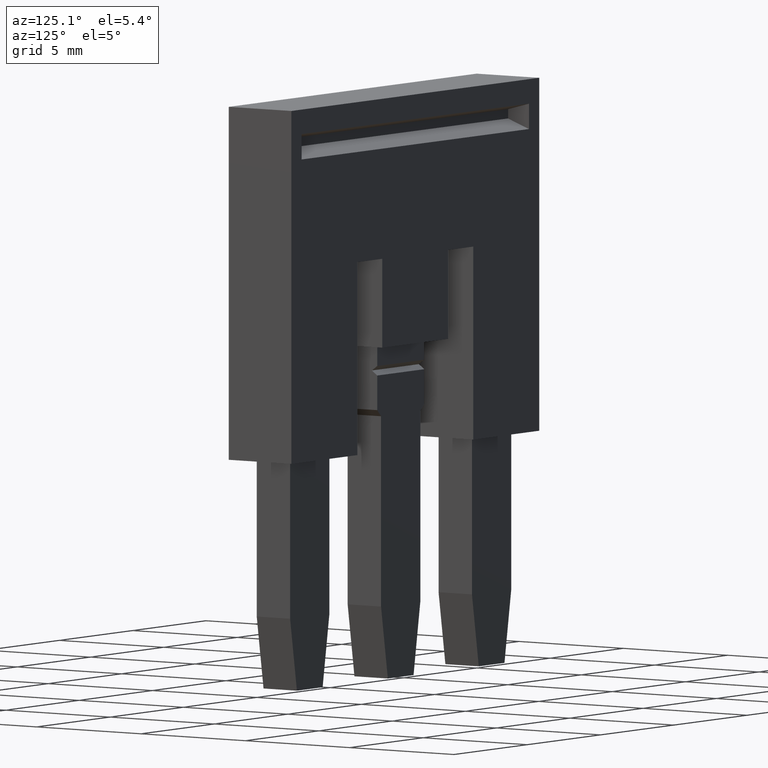
[diagram: clean part render]
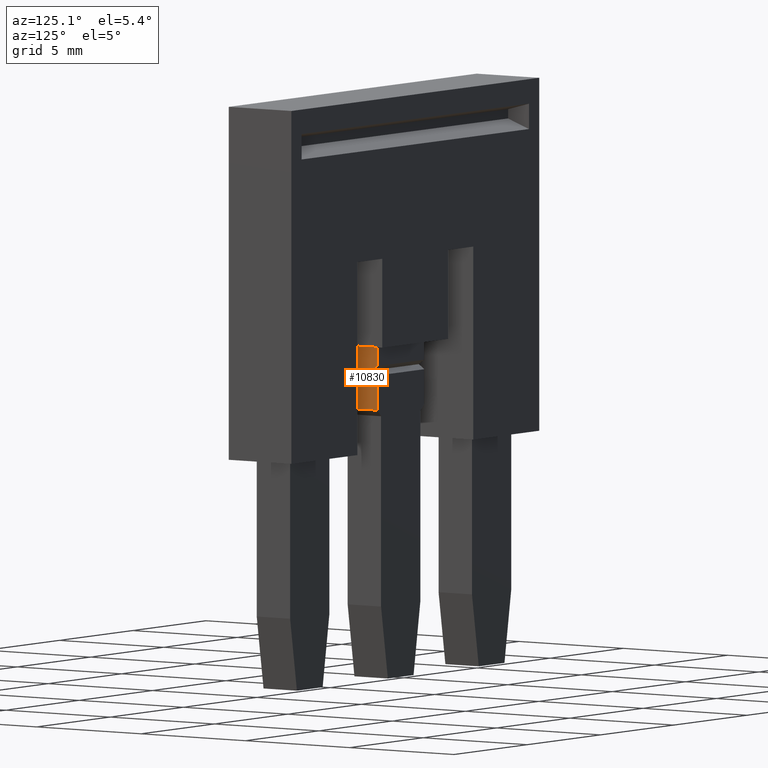
[diagram: same view with one face highlighted and labeled with its STEP entity id]
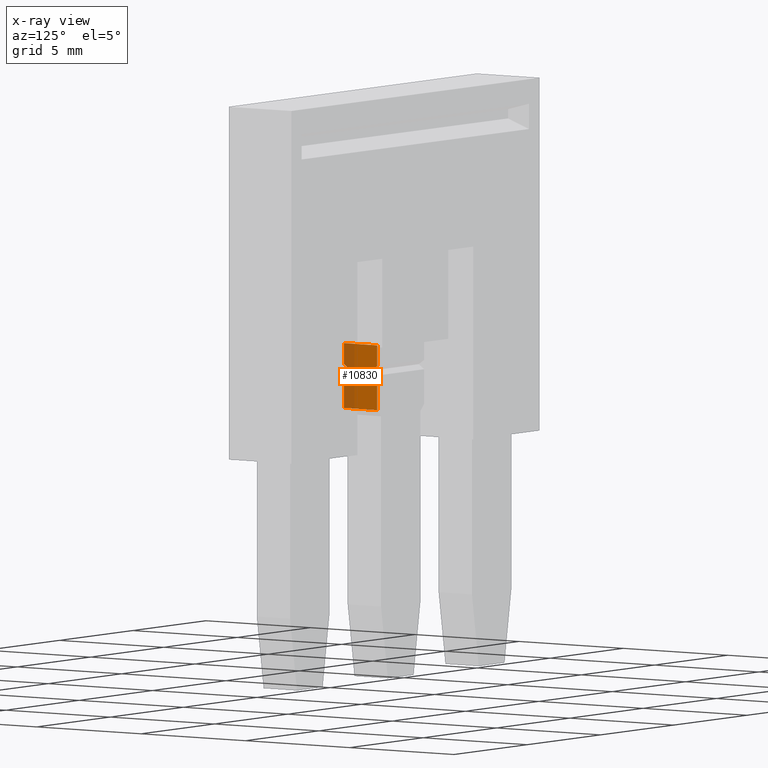
[diagram: x-ray of the same camera — body ghosted, the highlighted face saturated]
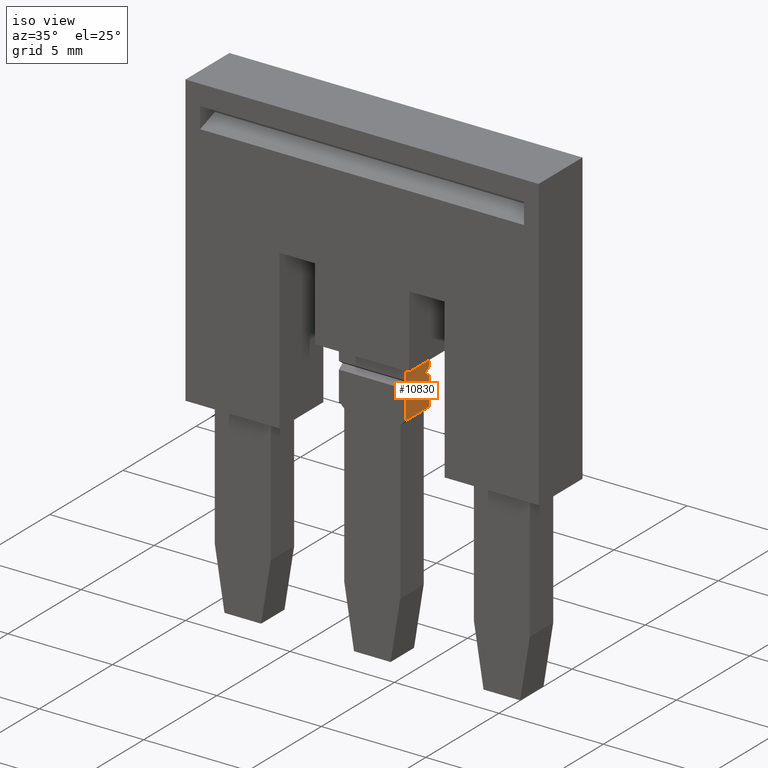
[diagram: same view with one face highlighted and labeled with its STEP entity id]
A machine part, auxiliary view. The second image highlights one B-rep face of the part: STEP entity #10830.
The next image is the same camera in x-ray: the body ghosted, the highlighted face saturated — about 31% of this face is hidden behind the body in this view.
A second angle (iso view) of the same face is appended — the face is thin or edge-on in the first view.
In plain terms, the highlighted planar face has unit normal (1, -0, 0).
Its self-contained STEP definition (entity closure, byte-faithful):
#6280=CARTESIAN_POINT('',(3.30716722169511,-18.9750000000004,
50.6599999999998));
#6290=VERTEX_POINT('',#6280);
#6320=CARTESIAN_POINT('',(5.60716722168535,-18.9750000000004,
50.6599999999998));
#6330=DIRECTION('',(-1.,0.,-1.22464679914735E-16));
#6340=VECTOR('',#6330,1.);
#6350=LINE('',#6320,#6340);
#6360=CARTESIAN_POINT('',(4.90716722169511,-18.9750000000004,
50.6599999999998));
#6370=VERTEX_POINT('',#6360);
#6380=EDGE_CURVE('',#6370,#6290,#6350,.T.);
#7000=CARTESIAN_POINT('',(3.30716722169511,-21.5249999999983,
50.6599999999998));
#7010=VERTEX_POINT('',#7000);
#7040=CARTESIAN_POINT('',(3.30716722169511,-12.305124,50.6599999999998))
;
#7050=DIRECTION('',(0.,-1.,0.));
#7060=VECTOR('',#7050,1.);
#7070=LINE('',#7040,#7060);
#7080=CARTESIAN_POINT('',(3.30716722169511,-20.1610705415495,
50.6599999999998));
#7090=VERTEX_POINT('',#7080);
#7100=EDGE_CURVE('',#7090,#7010,#7070,.T.);
#10220=CARTESIAN_POINT('',(4.10716722169511,-14.105626,50.6599999999998)
);
#10230=DIRECTION('',(1.22464679914735E-16,0.,-1.));
#10240=DIRECTION('',(0.,1.,0.));
#10250=AXIS2_PLACEMENT_3D('',#10220,#10230,#10240);
#10260=PLANE('',#10250);
#10270=CARTESIAN_POINT('',(4.90716722169511,-12.305124,50.6599999999998)
);
#10280=DIRECTION('',(0.,-1.,0.));
#10290=VECTOR('',#10280,1.);
#10300=LINE('',#10270,#10290);
#10310=CARTESIAN_POINT('',(4.90716722169511,-20.1610705415548,
50.6599999999998));
#10320=VERTEX_POINT('',#10310);
#10330=CARTESIAN_POINT('',(4.9071672216951,-21.5249999999983,
50.6599999999998));
#10340=VERTEX_POINT('',#10330);
#10350=EDGE_CURVE('',#10320,#10340,#10300,.T.);
#10360=ORIENTED_EDGE('',*,*,#10350,.T.);
#10370=CARTESIAN_POINT('',(5.60716722168535,-20.6696503111515,
50.6599999999998));
#10380=DIRECTION('',(0.809016994374947,-0.587785252292473,
1.11022302462516E-16));
#10390=VECTOR('',#10380,1.);
#10400=LINE('',#10370,#10390);
#10410=CARTESIAN_POINT('',(4.65106309235881,-19.9749999999942,
50.6599999999998));
#10420=VERTEX_POINT('',#10410);
#10430=EDGE_CURVE('',#10420,#10320,#10400,.T.);
#10440=ORIENTED_EDGE('',*,*,#10430,.T.);
#10450=CARTESIAN_POINT('',(5.60716722168535,-19.280349688837,
50.6599999999998));
#10460=DIRECTION('',(-0.809016994374947,-0.587785252292473,
-8.32667268468867E-17));
#10470=VECTOR('',#10460,1.);
#10480=LINE('',#10450,#10470);
#10490=CARTESIAN_POINT('',(4.90716722169511,-19.7889294584336,
50.6599999999998));
#10500=VERTEX_POINT('',#10490);
#10510=EDGE_CURVE('',#10500,#10420,#10480,.T.);
#10520=ORIENTED_EDGE('',*,*,#10510,.T.);
#10530=EDGE_CURVE('',#6370,#10500,#10300,.T.);
#10540=ORIENTED_EDGE('',*,*,#10530,.T.);
#10550=ORIENTED_EDGE('',*,*,#6380,.F.);
#10560=CARTESIAN_POINT('',(3.30716722169511,-19.7889294584283,
50.6599999999998));
#10570=VERTEX_POINT('',#10560);
#10580=EDGE_CURVE('',#6290,#10570,#7070,.T.);
#10590=ORIENTED_EDGE('',*,*,#10580,.F.);
#10600=CARTESIAN_POINT('',(5.60716722168535,-21.4599772728336,
50.6599999999998));
#10610=DIRECTION('',(-0.809016994374947,0.587785252292473,
-1.11022302462516E-16));
#10620=VECTOR('',#10610,1.);
#10630=LINE('',#10600,#10620);
#10640=CARTESIAN_POINT('',(3.5632713510314,-19.9749999999889,
50.6599999999998));
#10650=VERTEX_POINT('',#10640);
#10660=EDGE_CURVE('',#10650,#10570,#10630,.T.);
#10670=ORIENTED_EDGE('',*,*,#10660,.T.);
#10680=CARTESIAN_POINT('',(5.60716722168535,-18.4900227271443,
50.6599999999998));
#10690=DIRECTION('',(0.809016994374946,0.587785252292475,
8.32667268468867E-17));
#10700=VECTOR('',#10690,1.);
#10710=LINE('',#10680,#10700);
#10720=EDGE_CURVE('',#7090,#10650,#10710,.T.);
#10730=ORIENTED_EDGE('',*,*,#10720,.T.);
#10740=ORIENTED_EDGE('',*,*,#7100,.F.);
#10750=CARTESIAN_POINT('',(5.60716722168535,-21.5249999999983,
50.6599999999998));
#10760=DIRECTION('',(-1.,2.44929359829062E-16,-1.22464679914735E-16));
#10770=VECTOR('',#10760,1.);
#10780=LINE('',#10750,#10770);
#10790=EDGE_CURVE('',#10340,#7010,#10780,.T.);
#10800=ORIENTED_EDGE('',*,*,#10790,.T.);
#10810=EDGE_LOOP('',(#10800,#10740,#10730,#10670,#10590,#10550,#10540,
#10520,#10440,#10360));
#10820=FACE_OUTER_BOUND('',#10810,.T.);
#10830=ADVANCED_FACE('',(#10820),#10260,.T.);